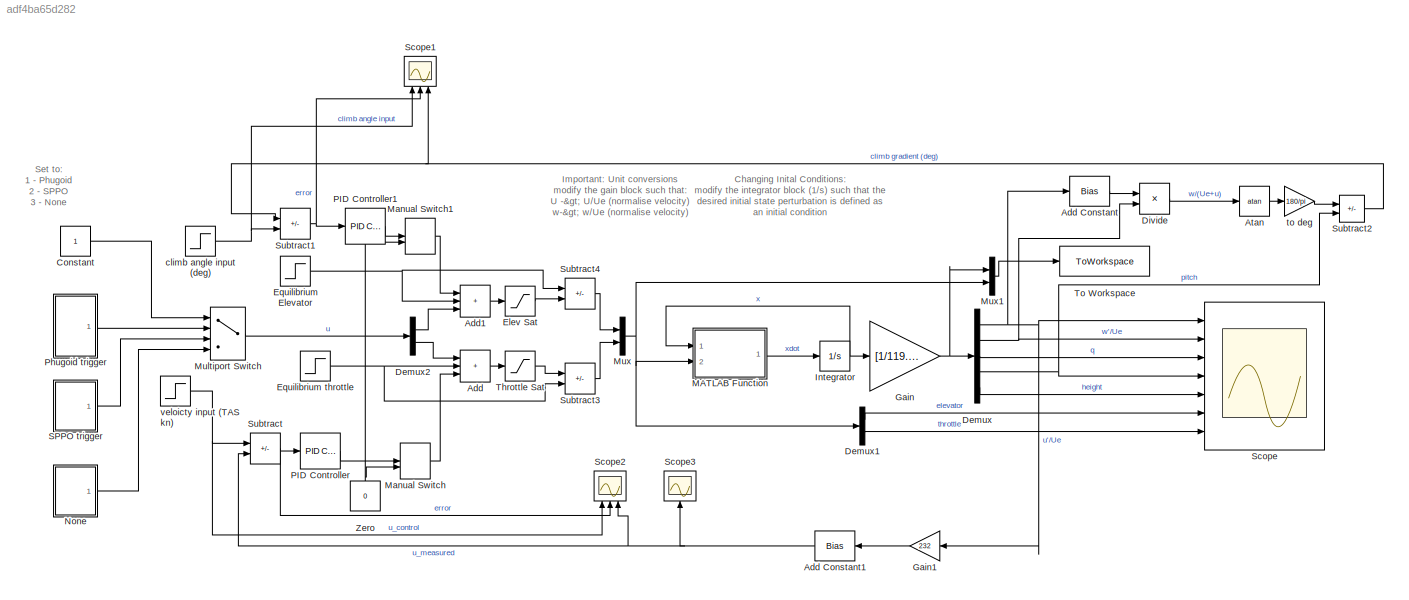
MODEL slx_adf4ba65d282
KIND model
CONFIG AbsTol = auto
CONFIG EnableMultiTasking = off
CONFIG FixedStep = auto
CONFIG MaxStep = auto
CONFIG MinStep = auto
CONFIG RelTol = 1e-3
CONFIG SampleTimeConstraint = Unconstrained
CONFIG SolverName = VariableStepAuto
CONFIG StartTime = 0.0
CONFIG StopTime = 100
BLOCK [Sum] Add
  IconShape = rectangular
  Inputs = +++
  Ports = [3, 1]
BLOCK [Bias] Add Constant
  Bias = 1
  SaturateOnIntegerOverflow = off
BLOCK [Bias] Add Constant1
  Bias = 232
  NameLocation = top
  SaturateOnIntegerOverflow = off
BLOCK [Sum] Add1
  IconShape = rectangular
  Inputs = +++
  Ports = [3, 1]
BLOCK [Trigonometry] Atan
  Operator = atan
  Ports = [1, 1]
BLOCK [Constant] Constant
BLOCK [Demux] Demux
  Outputs = 5
  Ports = [1, 5]
BLOCK [Demux] Demux1
  Outputs = 2
  Ports = [1, 2]
BLOCK [Demux] Demux2
  Outputs = 2
  Ports = [1, 2]
BLOCK [Product] Divide
  Inputs = /*
  Ports = [2, 1]
BLOCK [Saturate] Elev Sat
  LowerLimit = -2
  UpperLimit = 1
BLOCK [Step] Equilibrium Elevator
  After = 0
  SampleTime = 0
BLOCK [Step] Equilibrium throttle
  After = 0.1790
  SampleTime = 0
  Time = 0
BLOCK [Gain] Gain
  Gain = [1/119.351;1/119.351;180/pi;180/pi;1]
BLOCK [Gain] Gain1
  Gain = 232
  NameLocation = top
BLOCK [Integrator] Integrator
  InitialCondition = [0;0;0;0;0]
  Ports = [1, 1]
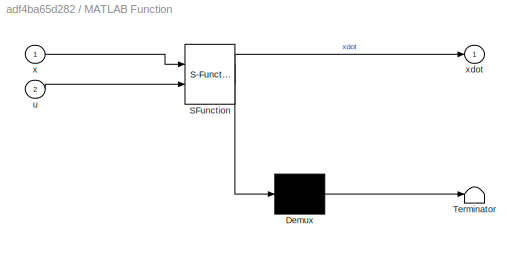
BLOCK [SubSystem] MATLAB Function
  ErrorFcn = Stateflow.Translate.translate
  PermitHierarchicalResolution = ExplicitOnly
  Ports = [2, 1]
  RequestExecContextInheritance = off
  SFBlockType = MATLAB Function
  TreatAsAtomicUnit = on
BLOCK [Demux] MATLAB Function/ Demux 
  Outputs = 1
  Ports = [1, 1]
BLOCK [S-Function] MATLAB Function/ SFunction 
  EnableBusSupport = on
  FunctionName = sf_sfun
  PortCounts = [2 2]
  Ports = [2, 2]
  SFcnIsStateOwnerBlock = off
  SFunctionDeploymentMode = off
  Tag = Stateflow S-Function 2
BLOCK [Terminator] MATLAB Function/ Terminator 
BLOCK [Inport] MATLAB Function/u
  Port = 2
BLOCK [Inport] MATLAB Function/x
BLOCK [Outport] MATLAB Function/xdot
BLOCK [ManualSwitch] Manual Switch
  CurrentSetting = 0
BLOCK [ManualSwitch] Manual Switch1
  CurrentSetting = 0
BLOCK [MultiPortSwitch] Multiport Switch
  InputSameDT = off
  Ports = [4, 1]
  SaturateOnIntegerOverflow = off
BLOCK [Mux] Mux
  DisplayOption = bar
  Inputs = 2
  Ports = [2, 1]
BLOCK [Mux] Mux1
  DisplayOption = bar
  Inputs = 2
  Ports = [2, 1]
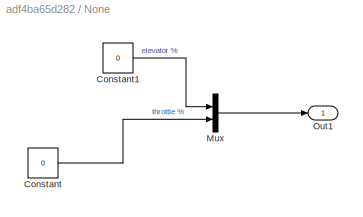
BLOCK [SubSystem] None
  Ports = [0, 1]
  RequestExecContextInheritance = off
BLOCK [Constant] None/Constant
  Value = 0
BLOCK [Constant] None/Constant1
  Value = 0
BLOCK [Mux] None/Mux
  DisplayOption = bar
  Inputs = 2
  Ports = [2, 1]
BLOCK [Outport] None/Out1
BLOCK [Reference] PID Controller  REF=slpidlib/PID Controller
  Ports = [1, 1]
  SourceBlock = slpidlib/PID Controller
  SourceProductBaseCode = SL
  SourceType = PID 1dof
BLOCK [Reference] PID Controller1  REF=slpidlib/PID Controller
  Ports = [1, 1]
  SourceBlock = slpidlib/PID Controller
  SourceProductBaseCode = SL
  SourceType = PID 1dof
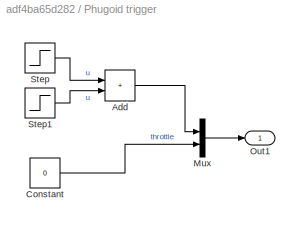
BLOCK [SubSystem] Phugoid trigger
  Ports = [0, 1]
  RequestExecContextInheritance = off
BLOCK [Sum] Phugoid trigger/Add
  IconShape = rectangular
  Ports = [2, 1]
BLOCK [Constant] Phugoid trigger/Constant
  Value = 0
BLOCK [Mux] Phugoid trigger/Mux
  DisplayOption = bar
  Inputs = 2
  Ports = [2, 1]
BLOCK [Outport] Phugoid trigger/Out1
BLOCK [Step] Phugoid trigger/Step
  After = 0.7639
  SampleTime = 0
  Time = 0
BLOCK [Step] Phugoid trigger/Step1
  After = -0.7639
  SampleTime = 0
  Time = 0.1
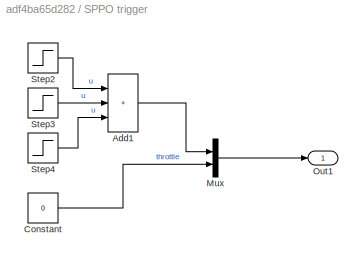
BLOCK [SubSystem] SPPO trigger
  Ports = [0, 1]
  RequestExecContextInheritance = off
BLOCK [Sum] SPPO trigger/Add1
  IconShape = rectangular
  Inputs = +++
  Ports = [3, 1]
BLOCK [Constant] SPPO trigger/Constant
  Value = 0
BLOCK [Mux] SPPO trigger/Mux
  DisplayOption = bar
  Inputs = 2
  Ports = [2, 1]
BLOCK [Outport] SPPO trigger/Out1
BLOCK [Step] SPPO trigger/Step2
  SampleTime = 0
  Time = 0
BLOCK [Step] SPPO trigger/Step3
  After = -2
  SampleTime = 0
  Time = 0.1
BLOCK [Step] SPPO trigger/Step4
  SampleTime = 0
  Time = 0.2
BLOCK [Scope] Scope
  Floating = off
  NumInputPorts = 7
  Ports = [7]
  ScopeSpecificationString = Simulink.scopes.TimeScopeBlockCfg('CurrentConfiguration', extmgr.ConfigurationSet(extmgr.Configuration('Core','General UI',true),extmgr.Configuration('Core','Source UI',true),extmgr.Configuration('Sources','WiredSimulink',true),extmgr.Configuration('Visuals','Time Domain',true,'SerializedDisplays',{struct('MinYLimReal','-0.02156','MaxYLimReal','0.02491','YLabelReal','','MinYLimMag','0.00000','MaxY...<+5007ch>
BLOCK [Scope] Scope1
  Floating = off
  NameLocation = right
  NumInputPorts = 3
  Ports = [3]
  ScopeSpecificationString = Simulink.scopes.TimeScopeBlockCfg('CurrentConfiguration', extmgr.ConfigurationSet(extmgr.Configuration('Core','General UI',true),extmgr.Configuration('Core','Source UI',true),extmgr.Configuration('Sources','WiredSimulink',true,'DataLoggingVariableName','ScopeData1'),extmgr.Configuration('Visuals','Time Domain',true,'SerializedDisplays',{struct('MinYLimReal','-1.37319','MaxYLimReal','6.37319','YLab...<+1428ch>
BLOCK [Scope] Scope2
  Floating = off
  NameLocation = right
  NumInputPorts = 3
  Ports = [3]
  ScopeSpecificationString = Simulink.scopes.TimeScopeBlockCfg('CurrentConfiguration', extmgr.ConfigurationSet(extmgr.Configuration('Core','General UI',true),extmgr.Configuration('Core','Source UI',true),extmgr.Configuration('Sources','WiredSimulink',true,'DataLoggingVariableName','ScopeData2'),extmgr.Configuration('Visuals','Time Domain',true,'SerializedDisplays',{struct('MinYLimReal','239.99904','MaxYLimReal','240.00467','Y...<+1499ch>
BLOCK [Scope] Scope3
  Floating = off
  NameLocation = right
  NumInputPorts = 1
  Ports = [1]
  ScopeSpecificationString = Simulink.scopes.TimeScopeBlockCfg('CurrentConfiguration', extmgr.ConfigurationSet(extmgr.Configuration('Core','General UI',true),extmgr.Configuration('Core','Source UI',true),extmgr.Configuration('Sources','WiredSimulink',true,'DataLoggingVariableName','ScopeData3'),extmgr.Configuration('Visuals','Time Domain',true,'SerializedDisplays',{struct('MinYLimReal','182.34971','MaxYLimReal','237.53796','Y...<+1383ch>
BLOCK [Sum] Subtract
  IconShape = rectangular
  Inputs = +-
  Ports = [2, 1]
BLOCK [Sum] Subtract1
  IconShape = rectangular
  Inputs = -+
  Ports = [2, 1]
BLOCK [Sum] Subtract2
  IconShape = rectangular
  Inputs = -+
  Ports = [2, 1]
BLOCK [Sum] Subtract3
  IconShape = rectangular
  Inputs = +-
  Ports = [2, 1]
BLOCK [Sum] Subtract4
  IconShape = rectangular
  Inputs = -+
  Ports = [2, 1]
BLOCK [Saturate] Throttle Sat
  LowerLimit = 0
  UpperLimit = 1
BLOCK [ToWorkspace] To Workspace
  FixptAsFi = on
  MaxDataPoints = inf
  Ports = [1]
  SampleTime = 0.01
  SaveFormat = Timeseries
  VariableName = long
BLOCK [Constant] Zero
  NameLocation = right
  OutDataTypeStr = Inherit: Inherit via back propagation
  Value = 0
BLOCK [Step] climb angle input (deg)
  After = 5
  SampleTime = 0
  Time = 0
BLOCK [Gain] to deg
  Gain = 180/pi
BLOCK [Step] veloicty input (TAS kn)
  After = 240
  SampleTime = 0
  Time = 0
ANNOTATION (root): Important: Unit conversions modify the gain block such that: U -> U/Ue (normalise velocity) w-> w/Ue (normalise velocity)
ANNOTATION (root): Changing Inital Conditions: modify the integrator block (1/s) such that the desired initial state perturbation is defined as an initial condition
ANNOTATION (root): Set to: 1 - Phugoid 2 - SPPO 3 - None
NET Add Constant1:1 -> Scope2:3, Scope3:1, Subtract:2
LINE Add Constant:1 -> Divide:1
LINE Add1:1 -> Elev Sat:1
LINE Add:1 -> Throttle Sat:1
LINE Atan:1 -> to deg:1
LINE Constant:1 -> Multiport Switch:1
LINE Demux1:1 -> Scope:6
LINE Demux1:2 -> Scope:7
LINE Demux2:1 -> Add1:3
LINE Demux2:2 -> Add:1
NET Demux:1 -> Add Constant:1, Gain1:1, Scope:1
NET Demux:2 -> Divide:2, Scope:2
LINE Demux:3 -> Scope:3
NET Demux:4 -> Scope:4, Subtract2:2
LINE Demux:5 -> Scope:5
LINE Divide:1 -> Atan:1
LINE Elev Sat:1 -> Subtract4:2
NET Equilibrium Elevator:1 -> Add1:2, Subtract4:1
NET Equilibrium throttle:1 -> Add:2, Subtract3:2
LINE Gain1:1 -> Add Constant1:1
NET Gain:1 -> Demux:1, Mux1:1
NET Integrator:1 -> Gain:1, MATLAB Function:1
LINE MATLAB Function:1 -> Integrator:1
LINE Manual Switch1:1 -> Add1:1
LINE Manual Switch:1 -> Add:3
LINE Multiport Switch:1 -> Demux2:1
LINE Mux1:1 -> To Workspace:1
NET Mux:1 -> Demux1:1, MATLAB Function:2, Mux1:2
LINE None/Constant1:1 -> None/Mux:1
LINE None/Constant:1 -> None/Mux:2
LINE None/Mux:1 -> None/Out1:1
LINE None:1 -> Multiport Switch:4
LINE PID Controller1:1 -> Manual Switch1:1
LINE PID Controller:1 -> Manual Switch:1
LINE Phugoid trigger/Add:1 -> Phugoid trigger/Mux:1
LINE Phugoid trigger/Constant:1 -> Phugoid trigger/Mux:2
LINE Phugoid trigger/Mux:1 -> Phugoid trigger/Out1:1
LINE Phugoid trigger/Step1:1 -> Phugoid trigger/Add:2
LINE Phugoid trigger/Step:1 -> Phugoid trigger/Add:1
LINE Phugoid trigger:1 -> Multiport Switch:2
LINE SPPO trigger/Add1:1 -> SPPO trigger/Mux:1
LINE SPPO trigger/Constant:1 -> SPPO trigger/Mux:2
LINE SPPO trigger/Mux:1 -> SPPO trigger/Out1:1
LINE SPPO trigger/Step2:1 -> SPPO trigger/Add1:1
LINE SPPO trigger/Step3:1 -> SPPO trigger/Add1:2
LINE SPPO trigger/Step4:1 -> SPPO trigger/Add1:3
LINE SPPO trigger:1 -> Multiport Switch:3
NET Subtract1:1 -> PID Controller1:1, Scope1:2
NET Subtract2:1 -> Scope1:3, Subtract1:1
LINE Subtract3:1 -> Mux:2
LINE Subtract4:1 -> Mux:1
NET Subtract:1 -> PID Controller:1, Scope2:2
LINE Throttle Sat:1 -> Subtract3:1
NET Zero:1 -> Manual Switch1:2, Manual Switch:2
NET climb angle input (deg):1 -> Scope1:1, Subtract1:2
LINE to deg:1 -> Subtract2:1
NET veloicty input (TAS kn):1 -> Scope2:1, Subtract:1
note: NET lines group one-source signal fan-out (src -> all destinations, sorted); 1:1 wires keep LINE
CHART MATLAB Function states=1 transitions=1
  STATE_LABEL 'eML_blk_kernel()'
  STATE_LABEL 'SCRIPT:\nfunction xdot = LinearEoM(x,u)\n%Input: - x:Longitudinal state vactor (5x1 vector)\n%         x(1)- u      m/s\n%         x(2)- w      m/s\n%         x(3)- q      rad/s\n%         x(4)- theta  deg\n%         x(5)- height m\n%       - u: longitudinal control vector (2x1 vector)\n%         u(1)- elevator deflection as percentage of max +ve defrlaction\n%               -2<u(1)<1     \n%         u(2)- T...<+1853ch>'
CHART  states=0 transitions=0
